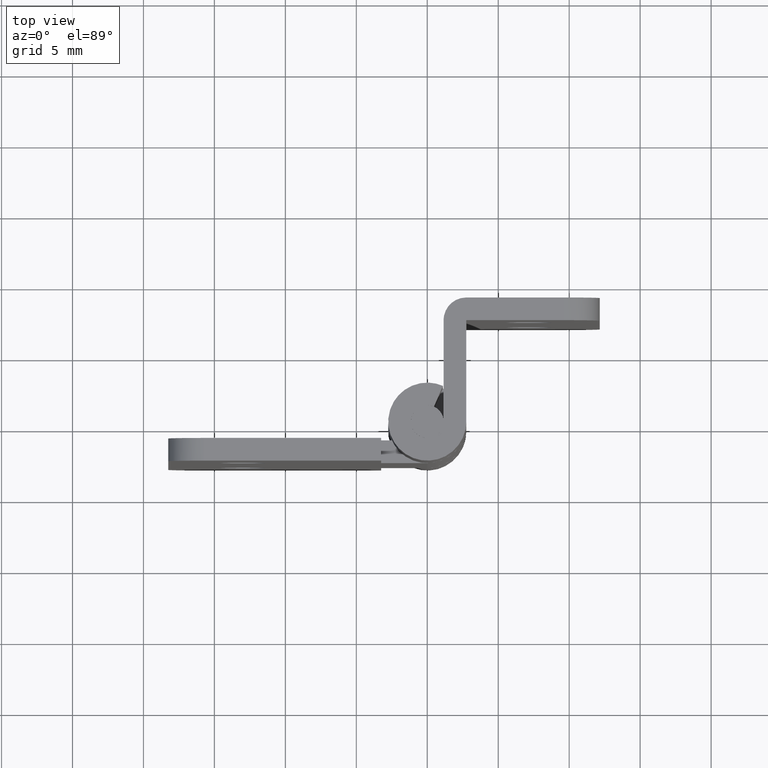
[diagram: clean part render]
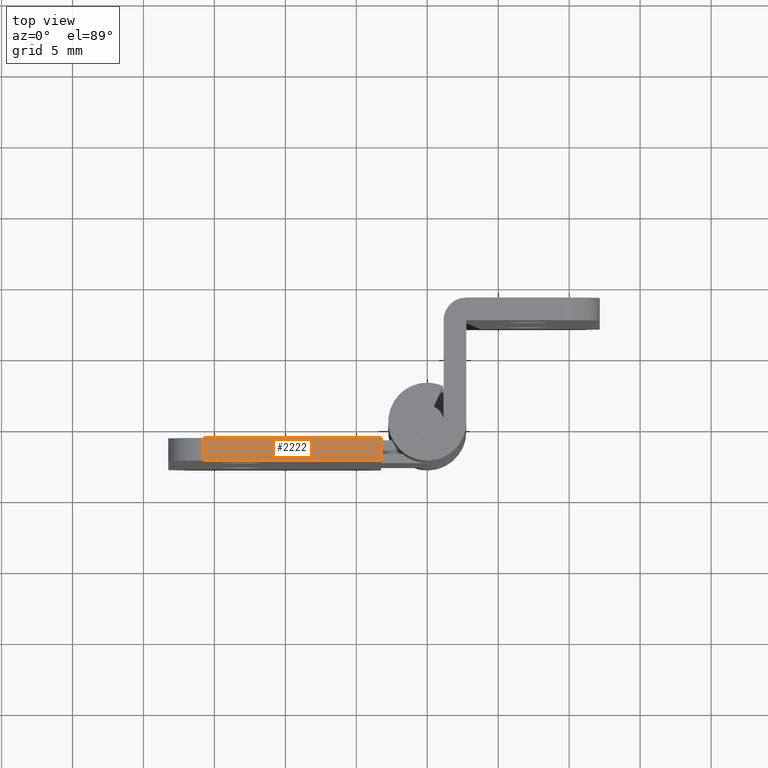
[diagram: same view with one face highlighted and labeled with its STEP entity id]
A machine part, top view. The second image highlights one B-rep face of the part: STEP entity #2222.
In plain terms, the highlighted face is a freeform B-spline surface patch.
Its self-contained STEP definition (entity closure, byte-faithful):
#1982=CARTESIAN_POINT('',(-3.250000000000000,-1.150002000000000,40.0));
#1983=VERTEX_POINT('',#1982);
#1989=CARTESIAN_POINT('',(-3.250000000000000,-2.750000000000000,40.0));
#1990=VERTEX_POINT('',#1989);
#1991=CARTESIAN_POINT('',(-3.250000000000000,-1.150002000000000,40.0));
#1992=CARTESIAN_POINT('',(-3.250000000000000,-2.750000000000000,40.0));
#1993=QUASI_UNIFORM_CURVE('',1,(#1991,#1992),.UNSPECIFIED.,.F.,.U.);
#1994=EDGE_CURVE('',#1983,#1990,#1993,.T.);
#2097=CARTESIAN_POINT('',(-15.750000000000000,-1.150002000000000,40.0));
#2098=VERTEX_POINT('',#2097);
#2119=CARTESIAN_POINT('',(-15.750000000000000,-2.750000000000000,40.0));
#2120=VERTEX_POINT('',#2119);
#2134=CARTESIAN_POINT('',(-15.750000000000000,-1.150002000000000,40.0));
#2135=CARTESIAN_POINT('',(-15.750000000000000,-2.750000000000000,40.0));
#2136=QUASI_UNIFORM_CURVE('',1,(#2134,#2135),.UNSPECIFIED.,.F.,.U.);
#2137=EDGE_CURVE('',#2098,#2120,#2136,.T.);
#2203=CARTESIAN_POINT('',(-16.374374975772579,-2.829919896998893,40.0));
#2204=CARTESIAN_POINT('',(-2.625624688951299,-2.829919896998893,40.0));
#2205=CARTESIAN_POINT('',(-16.374374975772579,-1.070082060085816,40.0));
#2206=CARTESIAN_POINT('',(-2.625624688951299,-1.070082060085816,40.0));
#2207=B_SPLINE_SURFACE_WITH_KNOTS('',1,1,((#2203,#2205),(#2204,#2206)),.UNSPECIFIED.,.F.,.F.,.U.,(2,2),(2,2),(0.0,13.748750286821281),(0.041708334948495,0.958291687403247),.UNSPECIFIED.);
#2208=CARTESIAN_POINT('',(-15.750000000000000,-2.750000000000000,40.0));
#2209=CARTESIAN_POINT('',(-3.250000000000000,-2.750000000000000,40.0));
#2210=QUASI_UNIFORM_CURVE('',1,(#2208,#2209),.UNSPECIFIED.,.F.,.U.);
#2211=EDGE_CURVE('',#2120,#1990,#2210,.T.);
#2212=ORIENTED_EDGE('',*,*,#2211,.T.);
#2213=ORIENTED_EDGE('',*,*,#1994,.F.);
#2214=CARTESIAN_POINT('',(-3.250000000000000,-1.150002000000000,40.0));
#2215=CARTESIAN_POINT('',(-15.750000000000000,-1.150002000000000,40.0));
#2216=QUASI_UNIFORM_CURVE('',1,(#2214,#2215),.UNSPECIFIED.,.F.,.U.);
#2217=EDGE_CURVE('',#1983,#2098,#2216,.T.);
#2218=ORIENTED_EDGE('',*,*,#2217,.T.);
#2219=ORIENTED_EDGE('',*,*,#2137,.T.);
#2220=EDGE_LOOP('',(#2212,#2213,#2218,#2219));
#2221=FACE_OUTER_BOUND('',#2220,.T.);
#2222=ADVANCED_FACE('',(#2221),#2207,.T.);